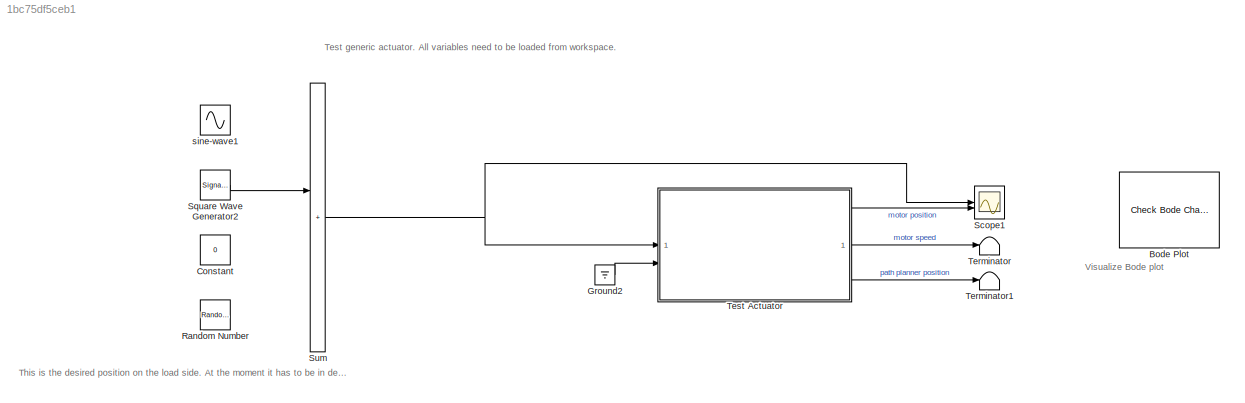
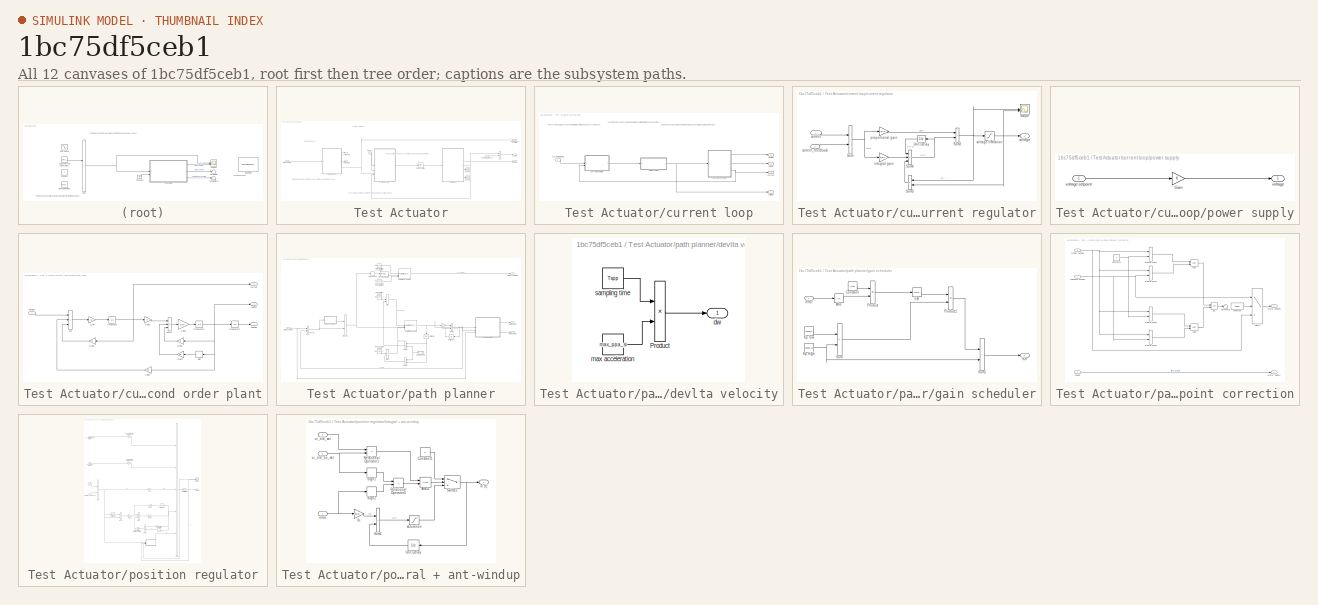
[diagram: thumbnail index - all 12 canvases of the model, root first then tree order]
MODEL slx_1bc75df5ceb1
KIND model
CONFIG AbsTol = auto
CONFIG EnableMultiTasking = off
CONFIG FixedStep = Tsi/10
CONFIG MaxStep = auto
CONFIG MinStep = auto
CONFIG RelTol = 2e-4
CONFIG SampleTimeConstraint = Unconstrained
CONFIG SolverName = VariableStepAuto
CONFIG StartTime = 0.0
CONFIG StopTime = 3
BLOCK [Reference] Bode Plot  REF=slctrlblks/Model Verification/Check Bode 
Characteristics
  InstantiateOnLoad = on
  LibrarySourceBlock = slctrlblks/Linear Analysis Plots/Bode Plot
  SourceBlock = slctrlblks/Model Verification/Check Bode \nCharacteristics
  SourceType = Checks_Bode
BLOCK [Constant] Constant
  Value = 0
BLOCK [Ground] Ground2
BLOCK [RandomNumber] Random Number
  SampleTime = 1e-3
  Variance = 1e-10
BLOCK [Scope] Scope1
  Floating = off
  NumInputPorts = 2
  ScopeSpecificationString = Simulink.scopes.TimeScopeBlockCfg('CurrentConfiguration', extmgr.ConfigurationSet(extmgr.Configuration('Core','General UI',true),extmgr.Configuration('Core','Source UI',true),extmgr.Configuration('Sources','WiredSimulink',true,'DataLoggingVariableName','ScopeData1'),extmgr.Configuration('Visuals','Time Domain',true,'SerializedDisplays',{struct('MinYLimReal','-1.53518','MaxYLimReal','1.57982','YLab...<+1549ch>
BLOCK [SignalGenerator] Square Wave Generator2
  Amplitude = 15e-3
  WaveForm = square
BLOCK [Sum] Sum
  IconShape = rectangular
  Inputs = ++++
BLOCK [Terminator] Terminator
BLOCK [Terminator] Terminator1
BLOCK [SubSystem] Test Actuator
BLOCK [Ground] Test Actuator/Ground
BLOCK [RateTransition] Test Actuator/Rate Transition
BLOCK [Scope] Test Actuator/Scope
  Floating = off
  NumInputPorts = 1
  ScopeSpecificationString = Simulink.scopes.TimeScopeBlockCfg('CurrentConfiguration', extmgr.ConfigurationSet(extmgr.Configuration('Core','General UI',true),extmgr.Configuration('Core','Source UI',true),extmgr.Configuration('Sources','WiredSimulink',true,'DataLoggingVariableName','ScopeData1'),extmgr.Configuration('Visuals','Time Domain',true,'SerializedDisplays',{struct('MinYLimReal','-8.23242','MaxYLimReal','8.54409','YLab...<+1450ch>
BLOCK [Scope] Test Actuator/Scope1
  Floating = off
  NumInputPorts = 1
  ScopeSpecificationString = Simulink.scopes.TimeScopeBlockCfg('CurrentConfiguration', extmgr.ConfigurationSet(extmgr.Configuration('Core','General UI',true),extmgr.Configuration('Core','Source UI',true),extmgr.Configuration('Sources','WiredSimulink',true,'DataLoggingVariableName','ScopeData2'),extmgr.Configuration('Visuals','Time Domain',true,'SerializedDisplays',{struct('MinYLimReal','-60.00000','MaxYLimReal','60.00000','YL...<+1425ch>
BLOCK [Sum] Test Actuator/Sum
  IconShape = rectangular
BLOCK [Terminator] Test Actuator/Terminator2
BLOCK [Terminator] Test Actuator/Terminator3
BLOCK [SubSystem] Test Actuator/current loop
BLOCK [Outport] Test Actuator/current loop/current
  Port = 3
BLOCK [Inport] Test Actuator/current loop/current demand
BLOCK [SubSystem] Test Actuator/current loop/current regulator
  SystemSampleTime = Tsi
  TreatAsAtomicUnit = on
BLOCK [Scope] Test Actuator/current loop/current regulator/Scope
  Floating = off
  NumInputPorts = 2
  ScopeSpecificationString = Simulink.scopes.TimeScopeBlockCfg('CurrentConfiguration', extmgr.ConfigurationSet(extmgr.Configuration('Core','General UI',true),extmgr.Configuration('Core','Source UI',true),extmgr.Configuration('Sources','WiredSimulink',true,'DataLoggingVariableName','ScopeData1'),extmgr.Configuration('Visuals','Time Domain',true,'SerializedDisplays',{struct('MinYLimReal','-73.60613','MaxYLimReal','69.18604','YL...<+1510ch>
BLOCK [Sum] Test Actuator/current loop/current regulator/Sum
  IconShape = rectangular
  Inputs = +-
BLOCK [Sum] Test Actuator/current loop/current regulator/Sum2
  IconShape = rectangular
BLOCK [Sum] Test Actuator/current loop/current regulator/Sum3
  IconShape = rectangular
  Inputs = +-
BLOCK [Sum] Test Actuator/current loop/current regulator/Sum4
  IconShape = rectangular
  Inputs = ++-
BLOCK [UnitDelay] Test Actuator/current loop/current regulator/Unit Delay
  HasFrameUpgradeWarning = on
  SampleTime = -1
BLOCK [Inport] Test Actuator/current loop/current regulator/current
BLOCK [Inport] Test Actuator/current loop/current regulator/current_feedback
  Port = 2
BLOCK [Gain] Test Actuator/current loop/current regulator/integral gain
  Gain = Ki_si*Tsi
BLOCK [Gain] Test Actuator/current loop/current regulator/proportional gain
  Gain = Kp_si
BLOCK [Outport] Test Actuator/current loop/current regulator/voltage
BLOCK [Saturate] Test Actuator/current loop/current regulator/voltage limitation
  LowerLimit = -Umax
  UpperLimit = Umax
BLOCK [Outport] Test Actuator/current loop/position
BLOCK [SubSystem] Test Actuator/current loop/power supply
BLOCK [Gain] Test Actuator/current loop/power supply/Gain
BLOCK [Outport] Test Actuator/current loop/power supply/voltage
BLOCK [Inport] Test Actuator/current loop/power supply/voltage setpoint
BLOCK [SubSystem] Test Actuator/current loop/second order plant
BLOCK [Gain] Test Actuator/current loop/second order plant/Gain
  Gain = 1/L
BLOCK [Gain] Test Actuator/current loop/second order plant/Gain1
  Gain = Kf
BLOCK [Gain] Test Actuator/current loop/second order plant/Gain2
  Gain = B0
  NameLocation = top
BLOCK [Gain] Test Actuator/current loop/second order plant/Gain3
  Gain = B
  NameLocation = top
BLOCK [Gain] Test Actuator/current loop/second order plant/Gain4
  Gain = Ke
  NameLocation = top
BLOCK [Gain] Test Actuator/current loop/second order plant/Gain5
  Gain = R
  NameLocation = top
BLOCK [Gain] Test Actuator/current loop/second order plant/Gain6
  Gain = 1/M
BLOCK [Integrator] Test Actuator/current loop/second order plant/Integrator
BLOCK [Integrator] Test Actuator/current loop/second order plant/Integrator1
BLOCK [Integrator] Test Actuator/current loop/second order plant/Integrator2
BLOCK [Signum] Test Actuator/current loop/second order plant/Sign
BLOCK [Sum] Test Actuator/current loop/second order plant/Sum
  IconShape = rectangular
  Inputs = +--
BLOCK [Sum] Test Actuator/current loop/second order plant/Sum1
  IconShape = rectangular
  Inputs = +--
BLOCK [Outport] Test Actuator/current loop/second order plant/current
  Port = 3
BLOCK [Outport] Test Actuator/current loop/second order plant/position
BLOCK [Outport] Test Actuator/current loop/second order plant/velocity
  Port = 2
BLOCK [Inport] Test Actuator/current loop/second order plant/voltage
BLOCK [Outport] Test Actuator/current loop/velocity
  Port = 2
BLOCK [Outport] Test Actuator/current loop/voltage
  Port = 4
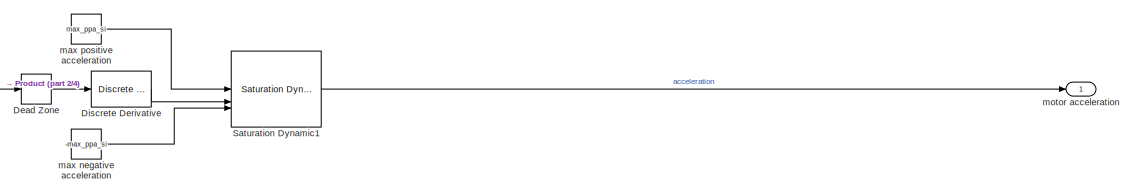
[diagram: Test Actuator/path planner - part 1/4, top right region]
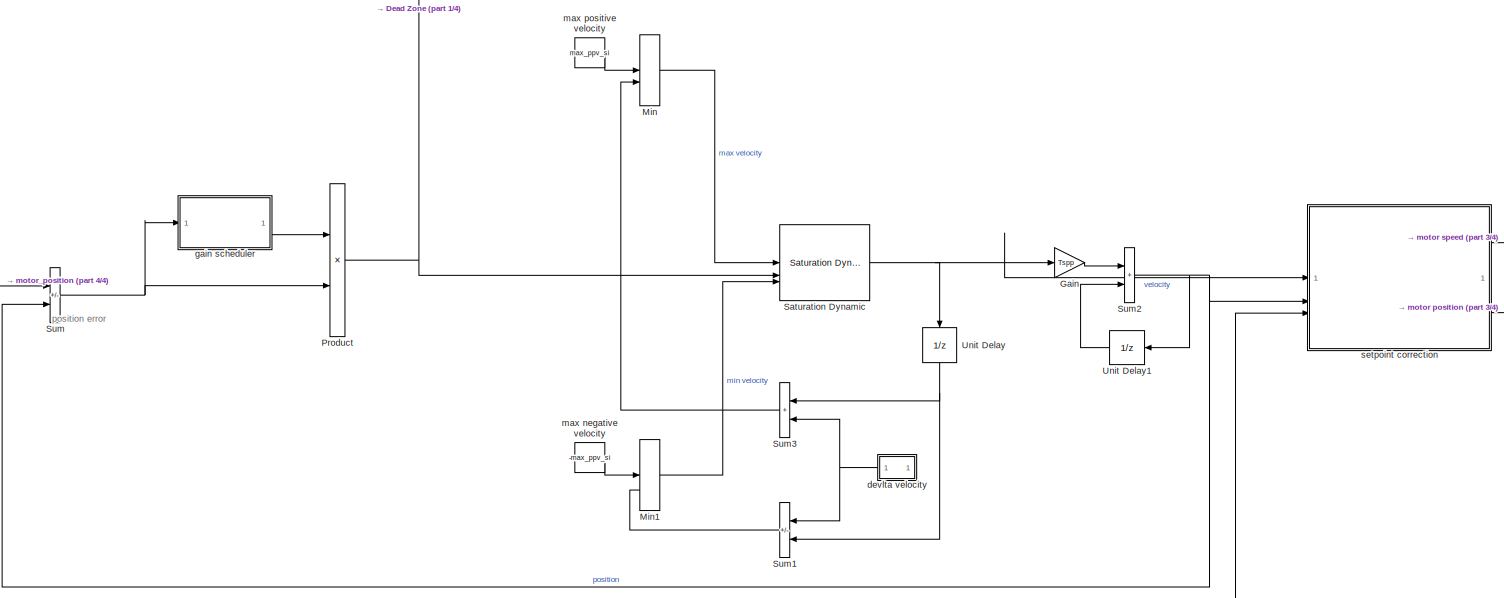
[diagram: Test Actuator/path planner - part 2/4, full width, middle band]
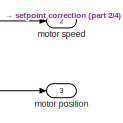
[diagram: Test Actuator/path planner - part 3/4, middle right region]
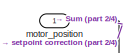
[diagram: Test Actuator/path planner - part 4/4, middle left region]
BLOCK [SubSystem] Test Actuator/path planner
  SystemSampleTime = Tspp
  TreatAsAtomicUnit = on
BLOCK [Outport] Test Actuator/path planner position
  Port = 3
BLOCK [DeadZone] Test Actuator/path planner/Dead Zone
  LowerValue = -0.01
  UpperValue = 0.01
BLOCK [Reference] Test Actuator/path planner/Discrete Derivative  REF=simulink/Discrete/Discrete Derivative
  SourceBlock = simulink/Discrete/Discrete Derivative
  SourceType = Discrete Derivative
BLOCK [Gain] Test Actuator/path planner/Gain
  Gain = Tspp
BLOCK [MinMax] Test Actuator/path planner/Min
  Inputs = 2
BLOCK [MinMax] Test Actuator/path planner/Min1
  Function = max
  Inputs = 2
BLOCK [Product] Test Actuator/path planner/Product
BLOCK [Reference] Test Actuator/path planner/Saturation Dynamic  REF=simulink/Discontinuities/Saturation
Dynamic
  SourceBlock = simulink/Discontinuities/Saturation\nDynamic
  SourceType = Saturation Dynamic
BLOCK [Reference] Test Actuator/path planner/Saturation Dynamic1  REF=simulink/Discontinuities/Saturation
Dynamic
  SourceBlock = simulink/Discontinuities/Saturation\nDynamic
  SourceType = Saturation Dynamic
BLOCK [Sum] Test Actuator/path planner/Sum
  IconShape = rectangular
  Inputs = +-
BLOCK [Sum] Test Actuator/path planner/Sum1
  IconShape = rectangular
  Inputs = -+
BLOCK [Sum] Test Actuator/path planner/Sum2
  IconShape = rectangular
BLOCK [Sum] Test Actuator/path planner/Sum3
  IconShape = rectangular
BLOCK [UnitDelay] Test Actuator/path planner/Unit Delay
  HasFrameUpgradeWarning = on
  NameLocation = right
  SampleTime = -1
BLOCK [UnitDelay] Test Actuator/path planner/Unit Delay1
  HasFrameUpgradeWarning = on
  SampleTime = -1
BLOCK [SubSystem] Test Actuator/path planner/devlta velocity
BLOCK [Product] Test Actuator/path planner/devlta velocity/Product
BLOCK [Outport] Test Actuator/path planner/devlta velocity/dw
BLOCK [Constant] Test Actuator/path planner/devlta velocity/max acceleration
  Value = max_ppa_si
BLOCK [Constant] Test Actuator/path planner/devlta velocity/sampling time
  Value = Tspp
BLOCK [SubSystem] Test Actuator/path planner/gain scheduler
BLOCK [Abs] Test Actuator/path planner/gain scheduler/Abs
  SaturateOnIntegerOverflow = off
BLOCK [Constant] Test Actuator/path planner/gain scheduler/Constant
  Value = -Hpp
BLOCK [Math] Test Actuator/path planner/gain scheduler/Exp
BLOCK [Outport] Test Actuator/path planner/gain scheduler/Km
BLOCK [Constant] Test Actuator/path planner/gain scheduler/Kp high
  Value = Kppph_si
BLOCK [Constant] Test Actuator/path planner/gain scheduler/Kp low
  Value = Kpppl_si
BLOCK [Product] Test Actuator/path planner/gain scheduler/Product
BLOCK [Product] Test Actuator/path planner/gain scheduler/Product1
BLOCK [Sum] Test Actuator/path planner/gain scheduler/Sum
  IconShape = rectangular
  Inputs = +-
BLOCK [Sum] Test Actuator/path planner/gain scheduler/Sum1
  IconShape = rectangular
BLOCK [Inport] Test Actuator/path planner/gain scheduler/error
BLOCK [Constant] Test Actuator/path planner/max negative acceleration
  Value = -max_ppa_si
BLOCK [Constant] Test Actuator/path planner/max negative velocity
  NameLocation = left
  Value = -max_ppv_si
BLOCK [Constant] Test Actuator/path planner/max positive acceleration
  Value = max_ppa_si
BLOCK [Constant] Test Actuator/path planner/max positive velocity
  NameLocation = left
  Value = max_ppv_si
BLOCK [Outport] Test Actuator/path planner/motor acceleration
BLOCK [Outport] Test Actuator/path planner/motor position
  Port = 3
BLOCK [Outport] Test Actuator/path planner/motor speed
  Port = 2
BLOCK [Inport] Test Actuator/path planner/motor_position
BLOCK [SubSystem] Test Actuator/path planner/setpoint correction
BLOCK [Logic] Test Actuator/path planner/setpoint correction/AND
  AllPortsSameDT = off
  IconShape = distinctive
  OutDataTypeStr = boolean
BLOCK [Logic] Test Actuator/path planner/setpoint correction/AND1
  AllPortsSameDT = off
  IconShape = distinctive
  OutDataTypeStr = boolean
BLOCK [Constant] Test Actuator/path planner/setpoint correction/Constant
  OutDataTypeStr = boolean
  Value = Active
BLOCK [Constant] Test Actuator/path planner/setpoint correction/Constant2
  Value = 0
BLOCK [RelationalOperator] Test Actuator/path planner/setpoint correction/GreaterThan1
  InputSameDT = off
  Operator = >
  OutDataTypeStr = boolean
  RndMeth = Simplest
BLOCK [RelationalOperator] Test Actuator/path planner/setpoint correction/GreaterThan2
  InputSameDT = off
  Operator = <
  OutDataTypeStr = boolean
  RndMeth = Simplest
BLOCK [RelationalOperator] Test Actuator/path planner/setpoint correction/GreaterThan3
  InputSameDT = off
  Operator = <
  OutDataTypeStr = boolean
  RndMeth = Simplest
BLOCK [RelationalOperator] Test Actuator/path planner/setpoint correction/GreaterThan4
  InputSameDT = off
  Operator = >
  OutDataTypeStr = boolean
  RndMeth = Simplest
BLOCK [Logic] Test Actuator/path planner/setpoint correction/OR
  AllPortsSameDT = off
  IconShape = distinctive
  Operator = OR
  OutDataTypeStr = boolean
BLOCK [Switch] Test Actuator/path planner/setpoint correction/Switch
  Criteria = u2 > Threshold
  InputSameDT = off
  SaturateOnIntegerOverflow = off
BLOCK [Terminator] Test Actuator/path planner/setpoint correction/Terminator
BLOCK [Inport] Test Actuator/path planner/setpoint correction/feedback position
  Port = 2
BLOCK [Outport] Test Actuator/path planner/setpoint correction/motor position
  Port = 2
BLOCK [Outport] Test Actuator/path planner/setpoint correction/motor velocity
BLOCK [Inport] Test Actuator/path planner/setpoint correction/speed
BLOCK [Inport] Test Actuator/path planner/setpoint correction/target position
  Port = 3
BLOCK [Outport] Test Actuator/position
BLOCK [Inport] Test Actuator/position disturbance
  Port = 2
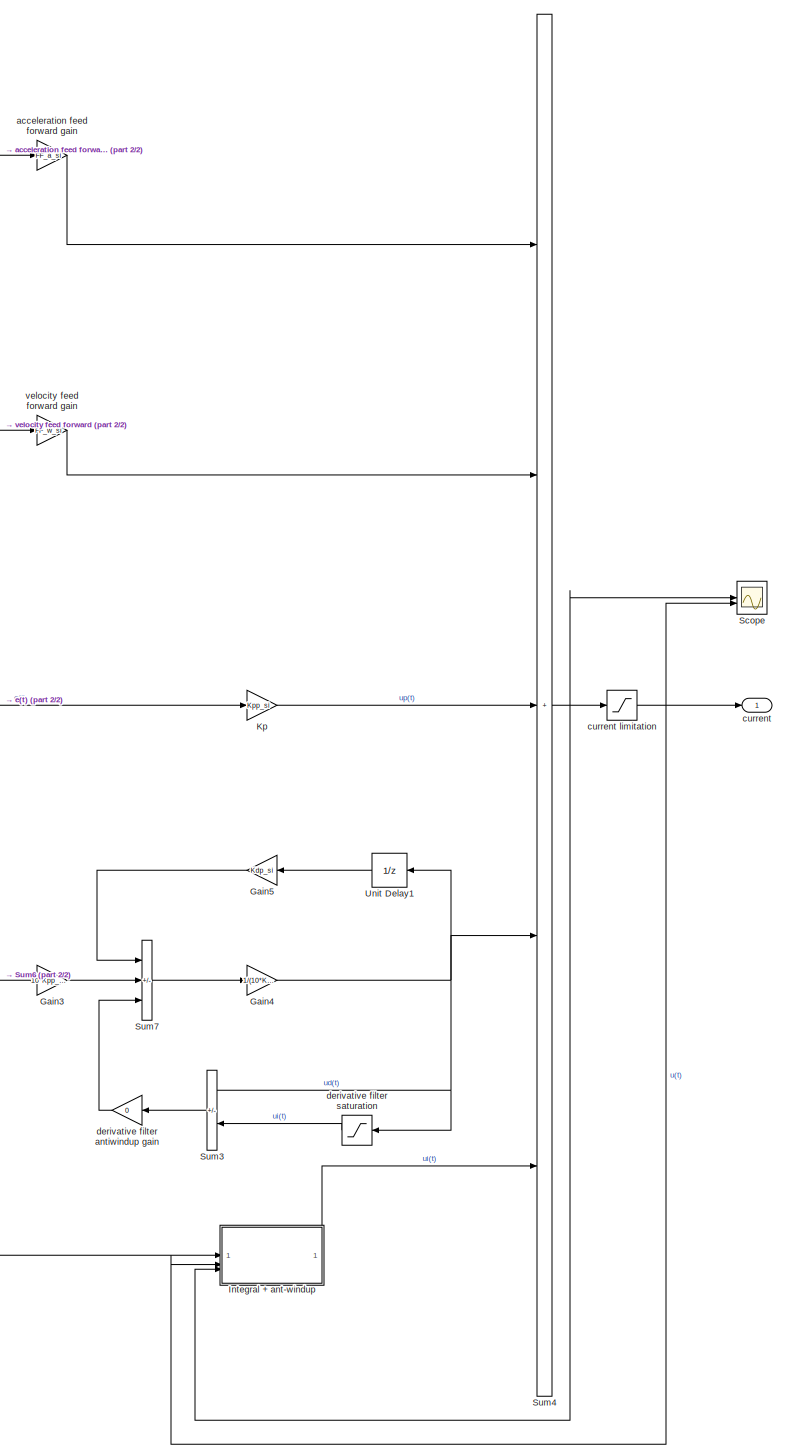
[diagram: Test Actuator/position regulator - part 1/2, right side, full height]
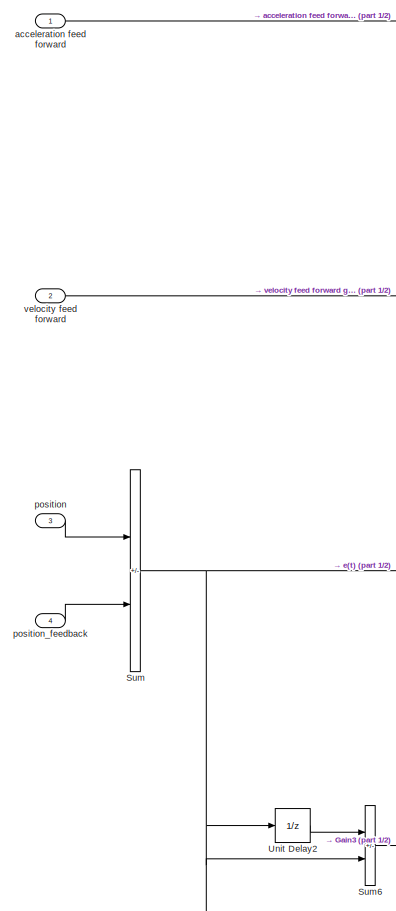
[diagram: Test Actuator/position regulator - part 2/2, middle left region]
BLOCK [SubSystem] Test Actuator/position regulator
  SystemSampleTime = Tsp
  TreatAsAtomicUnit = on
BLOCK [Gain] Test Actuator/position regulator/Gain3
  Gain = 10*Kpp_si*Kdp_si
BLOCK [Gain] Test Actuator/position regulator/Gain4
  Gain = 1/(10*Kpp_si*Tsp+Kdp_si)
BLOCK [Gain] Test Actuator/position regulator/Gain5
  Gain = Kdp_si
BLOCK [SubSystem] Test Actuator/position regulator/Integral + ant-windup
BLOCK [Logic] Test Actuator/position regulator/Integral + ant-windup/AND1
  AllPortsSameDT = off
  IconShape = distinctive
  OutDataTypeStr = boolean
BLOCK [Constant] Test Actuator/position regulator/Integral + ant-windup/Constant1
  Value = 0
BLOCK [Gain] Test Actuator/position regulator/Integral + ant-windup/Ki
  Gain = Kip_si*Tsp
BLOCK [RelationalOperator] Test Actuator/position regulator/Integral + ant-windup/Relational Operator1
  InputSameDT = off
  Operator = ~=
  OutDataTypeStr = boolean
  RndMeth = Simplest
BLOCK [RelationalOperator] Test Actuator/position regulator/Integral + ant-windup/Relational Operator3
  InputSameDT = off
  Operator = ~=
  OutDataTypeStr = boolean
  RndMeth = Simplest
BLOCK [Signum] Test Actuator/position regulator/Integral + ant-windup/Sign1
BLOCK [Signum] Test Actuator/position regulator/Integral + ant-windup/Sign2
BLOCK [Sum] Test Actuator/position regulator/Integral + ant-windup/Sum1
  IconShape = rectangular
BLOCK [Switch] Test Actuator/position regulator/Integral + ant-windup/Switch1
  Criteria = u2 > Threshold
  InputSameDT = off
  SaturateOnIntegerOverflow = off
BLOCK [UnitDelay] Test Actuator/position regulator/Integral + ant-windup/Unit Delay
  HasFrameUpgradeWarning = on
  SampleTime = -1
BLOCK [Inport] Test Actuator/position regulator/Integral + ant-windup/error
BLOCK [Saturate] Test Actuator/position regulator/Integral + ant-windup/saturation
  LowerLimit = -In
  UpperLimit = In
BLOCK [Outport] Test Actuator/position regulator/Integral + ant-windup/ui (t)
BLOCK [Inport] Test Actuator/position regulator/Integral + ant-windup/ui_old_no_sat
  Port = 3
BLOCK [Inport] Test Actuator/position regulator/Integral + ant-windup/ui_old_sat
  Port = 2
BLOCK [Gain] Test Actuator/position regulator/Kp
  Gain = Kpp_si
BLOCK [Scope] Test Actuator/position regulator/Scope
  Floating = off
  NumInputPorts = 2
  ScopeSpecificationString = Simulink.scopes.TimeScopeBlockCfg('CurrentConfiguration', extmgr.ConfigurationSet(extmgr.Configuration('Core','General UI',true),extmgr.Configuration('Core','Source UI',true),extmgr.Configuration('Sources','WiredSimulink',true,'DataLoggingVariableName','ScopeData1'),extmgr.Configuration('Visuals','Time Domain',true,'SerializedDisplays',{struct('MinYLimReal','-2796.80388','MaxYLimReal','2796.80388'...<+1463ch>
BLOCK [Sum] Test Actuator/position regulator/Sum
  IconShape = rectangular
  Inputs = +-
BLOCK [Sum] Test Actuator/position regulator/Sum3
  IconShape = rectangular
  Inputs = +-
BLOCK [Sum] Test Actuator/position regulator/Sum4
  IconShape = rectangular
  Inputs = +++++
BLOCK [Sum] Test Actuator/position regulator/Sum6
  IconShape = rectangular
  Inputs = -+
BLOCK [Sum] Test Actuator/position regulator/Sum7
  IconShape = rectangular
  Inputs = ++-
BLOCK [UnitDelay] Test Actuator/position regulator/Unit Delay1
  HasFrameUpgradeWarning = on
  SampleTime = -1
BLOCK [UnitDelay] Test Actuator/position regulator/Unit Delay2
  HasFrameUpgradeWarning = on
  SampleTime = -1
BLOCK [Inport] Test Actuator/position regulator/acceleration feed forward
BLOCK [Gain] Test Actuator/position regulator/acceleration feed forward gain
  Gain = FF_a_si
BLOCK [Outport] Test Actuator/position regulator/current
BLOCK [Saturate] Test Actuator/position regulator/current limitation
  LowerLimit = -Imax
  UpperLimit = Imax
BLOCK [Gain] Test Actuator/position regulator/derivative filter antiwindup gain
  Gain = 0
BLOCK [Saturate] Test Actuator/position regulator/derivative filter saturation
  LowerLimit = -Imax/2
  UpperLimit = Imax/2
BLOCK [Inport] Test Actuator/position regulator/position
  NameLocation = right
  Port = 3
BLOCK [Inport] Test Actuator/position regulator/position_feedback
  Port = 4
BLOCK [Inport] Test Actuator/position regulator/velocity feed forward
  Port = 2
BLOCK [Gain] Test Actuator/position regulator/velocity feed forward gain
  Gain = FF_w_si
BLOCK [Outport] Test Actuator/speed
  Port = 2
BLOCK [Inport] Test Actuator/target position
BLOCK [Sin] sine-wave1
  Amplitude = 2.5e-3
  Frequency = 2*pi*4
  SampleTime = 0
ANNOTATION (root): Test generic actuator. All variables need to be loaded from workspace.
ANNOTATION (root): This is the desired position on the load side. At the moment it has to be in degrees since we don't have a linear to angular map.
ANNOTATION (root): Visualize Bode plot
ANNOTATION Test Actuator: Drive internal path planner. It acts as low pass filter considering the physical limitation of the motor.
ANNOTATION Test Actuator: Employ a rate transmission block featuring a unity delay to replicate the time disparity between the sampling intervals of the position and current controllers.
ANNOTATION Test Actuator: The position regulator takes multiple inputs, including the position setpoint, position feedback, and optionally, velocity and acceleration feedforward components. It then calculates and produces the necessary current signal to control the plant. This regulatory mechanism is implemented using a straightforward PID control scheme, complete with current saturation (limited to the motor's nominal cur...<+33ch>
ANNOTATION Test Actuator: motor path planner
ANNOTATION Test Actuator: position control loop
ANNOTATION Test Actuator/current loop: Here the Power supply could be modelled. Pay attention to this because on the car the voltage supply is not always constant and it has to be taken into account.
ANNOTATION Test Actuator/current loop: Second order BLDC motor model takes the desired voltage and the load inertia (adjusted for the motor side using the gear ratio) as inputs and produces outputs for position, velocity, and current. It serves as a basic representation solely for simulation purposes, with the potential for more detailed and improved implementation in future iterations.
ANNOTATION Test Actuator/current loop: The current regulator receives input in the form of the desired current and current feedback from the plant, subsequently applying the requisite voltage to drive the BLDC motor. This regulation is achieved through the implementation of a PI controller, which incorporates voltage saturation (limited to the motor's nominal voltage) and anti-windup mechanisms.
ANNOTATION Test Actuator/path planner: position error
LINE Ground2:1 -> Test Actuator:2
LINE Square Wave Generator2:1 -> Sum:2
NET Sum:1 -> Scope1:1, Test Actuator:1
NET Test Actuator/Ground:1 -> Test Actuator/position regulator:1, Test Actuator/position regulator:2
LINE Test Actuator/Rate Transition:1 -> Test Actuator/current loop:1
LINE Test Actuator/Sum:1 -> Test Actuator/position:1
LINE Test Actuator/current loop/current demand:1 -> Test Actuator/current loop/current regulator:1
NET Test Actuator/current loop/current regulator/Sum2:1 -> Test Actuator/current loop/current regulator/Scope:1, Test Actuator/current loop/current regulator/Sum3:1, Test Actuator/current loop/current regulator/voltage limitation:1
LINE Test Actuator/current loop/current regulator/Sum3:1 -> Test Actuator/current loop/current regulator/Sum4:3
NET Test Actuator/current loop/current regulator/Sum4:1 -> Test Actuator/current loop/current regulator/Sum2:2, Test Actuator/current loop/current regulator/Unit Delay:1
NET Test Actuator/current loop/current regulator/Sum:1 -> Test Actuator/current loop/current regulator/integral gain:1, Test Actuator/current loop/current regulator/proportional gain:1
LINE Test Actuator/current loop/current regulator/Unit Delay:1 -> Test Actuator/current loop/current regulator/Sum4:1
LINE Test Actuator/current loop/current regulator/current:1 -> Test Actuator/current loop/current regulator/Sum:1
LINE Test Actuator/current loop/current regulator/current_feedback:1 -> Test Actuator/current loop/current regulator/Sum:2
LINE Test Actuator/current loop/current regulator/integral gain:1 -> Test Actuator/current loop/current regulator/Sum4:2
LINE Test Actuator/current loop/current regulator/proportional gain:1 -> Test Actuator/current loop/current regulator/Sum2:1
NET Test Actuator/current loop/current regulator/voltage limitation:1 -> Test Actuator/current loop/current regulator/Scope:2, Test Actuator/current loop/current regulator/Sum3:2, Test Actuator/current loop/current regulator/voltage:1
LINE Test Actuator/current loop/current regulator:1 -> Test Actuator/current loop/power supply:1
LINE Test Actuator/current loop/power supply/Gain:1 -> Test Actuator/current loop/power supply/voltage:1
LINE Test Actuator/current loop/power supply/voltage setpoint:1 -> Test Actuator/current loop/power supply/Gain:1
NET Test Actuator/current loop/power supply:1 -> Test Actuator/current loop/second order plant:1, Test Actuator/current loop/voltage:1
LINE Test Actuator/current loop/second order plant/Gain1:1 -> Test Actuator/current loop/second order plant/Sum1:1
LINE Test Actuator/current loop/second order plant/Gain2:1 -> Test Actuator/current loop/second order plant/Sum1:2
LINE Test Actuator/current loop/second order plant/Gain3:1 -> Test Actuator/current loop/second order plant/Sum1:3
LINE Test Actuator/current loop/second order plant/Gain4:1 -> Test Actuator/current loop/second order plant/Sum:2
LINE Test Actuator/current loop/second order plant/Gain5:1 -> Test Actuator/current loop/second order plant/Sum:3
LINE Test Actuator/current loop/second order plant/Gain6:1 -> Test Actuator/current loop/second order plant/Integrator1:1
LINE Test Actuator/current loop/second order plant/Gain:1 -> Test Actuator/current loop/second order plant/Integrator:1
NET Test Actuator/current loop/second order plant/Integrator1:1 -> Test Actuator/current loop/second order plant/Gain3:1, Test Actuator/current loop/second order plant/Gain4:1, Test Actuator/current loop/second order plant/Integrator2:1, Test Actuator/current loop/second order plant/Sign:1, Test Actuator/current loop/second order plant/velocity:1
LINE Test Actuator/current loop/second order plant/Integrator2:1 -> Test Actuator/current loop/second order plant/position:1
NET Test Actuator/current loop/second order plant/Integrator:1 -> Test Actuator/current loop/second order plant/Gain1:1, Test Actuator/current loop/second order plant/Gain5:1, Test Actuator/current loop/second order plant/current:1
LINE Test Actuator/current loop/second order plant/Sign:1 -> Test Actuator/current loop/second order plant/Gain2:1
LINE Test Actuator/current loop/second order plant/Sum1:1 -> Test Actuator/current loop/second order plant/Gain6:1
LINE Test Actuator/current loop/second order plant/Sum:1 -> Test Actuator/current loop/second order plant/Gain:1
LINE Test Actuator/current loop/second order plant/voltage:1 -> Test Actuator/current loop/second order plant/Sum:1
LINE Test Actuator/current loop/second order plant:1 -> Test Actuator/current loop/position:1
LINE Test Actuator/current loop/second order plant:2 -> Test Actuator/current loop/velocity:1
NET Test Actuator/current loop/second order plant:3 -> Test Actuator/current loop/current regulator:2, Test Actuator/current loop/current:1
NET Test Actuator/current loop:1 -> Test Actuator/Sum:1, Test Actuator/position regulator:4
LINE Test Actuator/current loop:2 -> Test Actuator/speed:1
LINE Test Actuator/current loop:3 -> Test Actuator/Scope:1
LINE Test Actuator/current loop:4 -> Test Actuator/Scope1:1
LINE Test Actuator/path planner/Dead Zone:1 -> Test Actuator/path planner/Discrete Derivative:1
LINE Test Actuator/path planner/Discrete Derivative:1 -> Test Actuator/path planner/Saturation Dynamic1:2
LINE Test Actuator/path planner/Gain:1 -> Test Actuator/path planner/Sum2:1
LINE Test Actuator/path planner/Min1:1 -> Test Actuator/path planner/Saturation Dynamic:3
LINE Test Actuator/path planner/Min:1 -> Test Actuator/path planner/Saturation Dynamic:1
NET Test Actuator/path planner/Product:1 -> Test Actuator/path planner/Dead Zone:1, Test Actuator/path planner/Saturation Dynamic:2
LINE Test Actuator/path planner/Saturation Dynamic1:1 -> Test Actuator/path planner/motor acceleration:1
NET Test Actuator/path planner/Saturation Dynamic:1 -> Test Actuator/path planner/Gain:1, Test Actuator/path planner/Unit Delay:1, Test Actuator/path planner/setpoint correction:1
LINE Test Actuator/path planner/Sum1:1 -> Test Actuator/path planner/Min1:2
NET Test Actuator/path planner/Sum2:1 -> Test Actuator/path planner/Sum:2, Test Actuator/path planner/Unit Delay1:1, Test Actuator/path planner/setpoint correction:2
LINE Test Actuator/path planner/Sum3:1 -> Test Actuator/path planner/Min:2
NET Test Actuator/path planner/Sum:1 -> Test Actuator/path planner/Product:2, Test Actuator/path planner/gain scheduler:1
LINE Test Actuator/path planner/Unit Delay1:1 -> Test Actuator/path planner/Sum2:2
NET Test Actuator/path planner/Unit Delay:1 -> Test Actuator/path planner/Sum1:2, Test Actuator/path planner/Sum3:1
LINE Test Actuator/path planner/devlta velocity/Product:1 -> Test Actuator/path planner/devlta velocity/dw:1
LINE Test Actuator/path planner/devlta velocity/max acceleration:1 -> Test Actuator/path planner/devlta velocity/Product:2
LINE Test Actuator/path planner/devlta velocity/sampling time:1 -> Test Actuator/path planner/devlta velocity/Product:1
NET Test Actuator/path planner/devlta velocity:1 -> Test Actuator/path planner/Sum1:1, Test Actuator/path planner/Sum3:2
LINE Test Actuator/path planner/gain scheduler/Abs:1 -> Test Actuator/path planner/gain scheduler/Product:2
LINE Test Actuator/path planner/gain scheduler/Constant:1 -> Test Actuator/path planner/gain scheduler/Product:1
LINE Test Actuator/path planner/gain scheduler/Exp:1 -> Test Actuator/path planner/gain scheduler/Product1:1
NET Test Actuator/path planner/gain scheduler/Kp high:1 -> Test Actuator/path planner/gain scheduler/Sum1:2, Test Actuator/path planner/gain scheduler/Sum:2
LINE Test Actuator/path planner/gain scheduler/Kp low:1 -> Test Actuator/path planner/gain scheduler/Sum:1
LINE Test Actuator/path planner/gain scheduler/Product1:1 -> Test Actuator/path planner/gain scheduler/Sum1:1
LINE Test Actuator/path planner/gain scheduler/Product:1 -> Test Actuator/path planner/gain scheduler/Exp:1
LINE Test Actuator/path planner/gain scheduler/Sum1:1 -> Test Actuator/path planner/gain scheduler/Km:1
LINE Test Actuator/path planner/gain scheduler/Sum:1 -> Test Actuator/path planner/gain scheduler/Product1:2
LINE Test Actuator/path planner/gain scheduler/error:1 -> Test Actuator/path planner/gain scheduler/Abs:1
LINE Test Actuator/path planner/gain scheduler:1 -> Test Actuator/path planner/Product:1
LINE Test Actuator/path planner/max negative acceleration:1 -> Test Actuator/path planner/Saturation Dynamic1:3
LINE Test Actuator/path planner/max negative velocity:1 -> Test Actuator/path planner/Min1:1
LINE Test Actuator/path planner/max positive acceleration:1 -> Test Actuator/path planner/Saturation Dynamic1:1
LINE Test Actuator/path planner/max positive velocity:1 -> Test Actuator/path planner/Min:1
NET Test Actuator/path planner/motor_position:1 -> Test Actuator/path planner/Sum:1, Test Actuator/path planner/setpoint correction:3
LINE Test Actuator/path planner/setpoint correction/AND1:1 -> Test Actuator/path planner/setpoint correction/OR:2
LINE Test Actuator/path planner/setpoint correction/AND:1 -> Test Actuator/path planner/setpoint correction/OR:1
NET Test Actuator/path planner/setpoint correction/Constant2:1 -> Test Actuator/path planner/setpoint correction/GreaterThan3:2, Test Actuator/path planner/setpoint correction/GreaterThan4:2
LINE Test Actuator/path planner/setpoint correction/Constant:1 -> Test Actuator/path planner/setpoint correction/Switch:2
LINE Test Actuator/path planner/setpoint correction/GreaterThan1:1 -> Test Actuator/path planner/setpoint correction/AND:2
LINE Test Actuator/path planner/setpoint correction/GreaterThan2:1 -> Test Actuator/path planner/setpoint correction/AND1:2
LINE Test Actuator/path planner/setpoint correction/GreaterThan3:1 -> Test Actuator/path planner/setpoint correction/AND1:1
LINE Test Actuator/path planner/setpoint correction/GreaterThan4:1 -> Test Actuator/path planner/setpoint correction/AND:1
LINE Test Actuator/path planner/setpoint correction/OR:1 -> Test Actuator/path planner/setpoint correction/Terminator:1
LINE Test Actuator/path planner/setpoint correction/Switch:1 -> Test Actuator/path planner/setpoint correction/motor position:1
NET Test Actuator/path planner/setpoint correction/feedback position:1 -> Test Actuator/path planner/setpoint correction/GreaterThan1:2, Test Actuator/path planner/setpoint correction/GreaterThan2:2, Test Actuator/path planner/setpoint correction/Switch:1
LINE Test Actuator/path planner/setpoint correction/speed:1 -> Test Actuator/path planner/setpoint correction/motor velocity:1
NET Test Actuator/path planner/setpoint correction/target position:1 -> Test Actuator/path planner/setpoint correction/GreaterThan1:1, Test Actuator/path planner/setpoint correction/GreaterThan2:1, Test Actuator/path planner/setpoint correction/GreaterThan3:1, Test Actuator/path planner/setpoint correction/GreaterThan4:1, Test Actuator/path planner/setpoint correction/Switch:3
LINE Test Actuator/path planner/setpoint correction:1 -> Test Actuator/path planner/motor speed:1
LINE Test Actuator/path planner/setpoint correction:2 -> Test Actuator/path planner/motor position:1
LINE Test Actuator/path planner:1 -> Test Actuator/Terminator2:1
LINE Test Actuator/path planner:2 -> Test Actuator/Terminator3:1
NET Test Actuator/path planner:3 -> Test Actuator/path planner position:1, Test Actuator/position regulator:3
LINE Test Actuator/position disturbance:1 -> Test Actuator/Sum:2
LINE Test Actuator/position regulator/Gain3:1 -> Test Actuator/position regulator/Sum7:2
NET Test Actuator/position regulator/Gain4:1 -> Test Actuator/position regulator/Sum3:1, Test Actuator/position regulator/Sum4:4, Test Actuator/position regulator/Unit Delay1:1, Test Actuator/position regulator/derivative filter saturation:1
LINE Test Actuator/position regulator/Gain5:1 -> Test Actuator/position regulator/Sum7:1
LINE Test Actuator/position regulator/Integral + ant-windup/AND1:1 -> Test Actuator/position regulator/Integral + ant-windup/Switch1:2
LINE Test Actuator/position regulator/Integral + ant-windup/Constant1:1 -> Test Actuator/position regulator/Integral + ant-windup/Switch1:1
LINE Test Actuator/position regulator/Integral + ant-windup/Ki:1 -> Test Actuator/position regulator/Integral + ant-windup/Sum1:1
LINE Test Actuator/position regulator/Integral + ant-windup/Relational Operator1:1 -> Test Actuator/position regulator/Integral + ant-windup/AND1:1
LINE Test Actuator/position regulator/Integral + ant-windup/Relational Operator3:1 -> Test Actuator/position regulator/Integral + ant-windup/AND1:2
LINE Test Actuator/position regulator/Integral + ant-windup/Sign1:1 -> Test Actuator/position regulator/Integral + ant-windup/Relational Operator3:1
LINE Test Actuator/position regulator/Integral + ant-windup/Sign2:1 -> Test Actuator/position regulator/Integral + ant-windup/Relational Operator3:2
LINE Test Actuator/position regulator/Integral + ant-windup/Sum1:1 -> Test Actuator/position regulator/Integral + ant-windup/saturation:1
NET Test Actuator/position regulator/Integral + ant-windup/Switch1:1 -> Test Actuator/position regulator/Integral + ant-windup/Unit Delay:1, Test Actuator/position regulator/Integral + ant-windup/ui (t):1
LINE Test Actuator/position regulator/Integral + ant-windup/Unit Delay:1 -> Test Actuator/position regulator/Integral + ant-windup/Sum1:2
NET Test Actuator/position regulator/Integral + ant-windup/error:1 -> Test Actuator/position regulator/Integral + ant-windup/Ki:1, Test Actuator/position regulator/Integral + ant-windup/Sign2:1
LINE Test Actuator/position regulator/Integral + ant-windup/saturation:1 -> Test Actuator/position regulator/Integral + ant-windup/Switch1:3
NET Test Actuator/position regulator/Integral + ant-windup/ui_old_no_sat:1 -> Test Actuator/position regulator/Integral + ant-windup/Relational Operator1:2, Test Actuator/position regulator/Integral + ant-windup/Sign1:1
LINE Test Actuator/position regulator/Integral + ant-windup/ui_old_sat:1 -> Test Actuator/position regulator/Integral + ant-windup/Relational Operator1:1
LINE Test Actuator/position regulator/Integral + ant-windup:1 -> Test Actuator/position regulator/Sum4:5
LINE Test Actuator/position regulator/Kp:1 -> Test Actuator/position regulator/Sum4:3
LINE Test Actuator/position regulator/Sum3:1 -> Test Actuator/position regulator/derivative filter antiwindup gain:1
NET Test Actuator/position regulator/Sum4:1 -> Test Actuator/position regulator/Integral + ant-windup:3, Test Actuator/position regulator/Scope:1, Test Actuator/position regulator/current limitation:1
LINE Test Actuator/position regulator/Sum6:1 -> Test Actuator/position regulator/Gain3:1
LINE Test Actuator/position regulator/Sum7:1 -> Test Actuator/position regulator/Gain4:1
NET Test Actuator/position regulator/Sum:1 -> Test Actuator/position regulator/Integral + ant-windup:1, Test Actuator/position regulator/Kp:1, Test Actuator/position regulator/Sum6:2, Test Actuator/position regulator/Unit Delay2:1
LINE Test Actuator/position regulator/Unit Delay1:1 -> Test Actuator/position regulator/Gain5:1
LINE Test Actuator/position regulator/Unit Delay2:1 -> Test Actuator/position regulator/Sum6:1
LINE Test Actuator/position regulator/acceleration feed forward gain:1 -> Test Actuator/position regulator/Sum4:1
LINE Test Actuator/position regulator/acceleration feed forward:1 -> Test Actuator/position regulator/acceleration feed forward gain:1
NET Test Actuator/position regulator/current limitation:1 -> Test Actuator/position regulator/Integral + ant-windup:2, Test Actuator/position regulator/Scope:2, Test Actuator/position regulator/current:1
LINE Test Actuator/position regulator/derivative filter antiwindup gain:1 -> Test Actuator/position regulator/Sum7:3
LINE Test Actuator/position regulator/derivative filter saturation:1 -> Test Actuator/position regulator/Sum3:2
LINE Test Actuator/position regulator/position:1 -> Test Actuator/position regulator/Sum:1
LINE Test Actuator/position regulator/position_feedback:1 -> Test Actuator/position regulator/Sum:2
LINE Test Actuator/position regulator/velocity feed forward gain:1 -> Test Actuator/position regulator/Sum4:2
LINE Test Actuator/position regulator/velocity feed forward:1 -> Test Actuator/position regulator/velocity feed forward gain:1
LINE Test Actuator/position regulator:1 -> Test Actuator/Rate Transition:1
LINE Test Actuator/target position:1 -> Test Actuator/path planner:1
LINE Test Actuator:1 -> Scope1:2
LINE Test Actuator:2 -> Terminator:1
LINE Test Actuator:3 -> Terminator1:1
note: NET lines group one-source signal fan-out (src -> all destinations, sorted); 1:1 wires keep LINE
